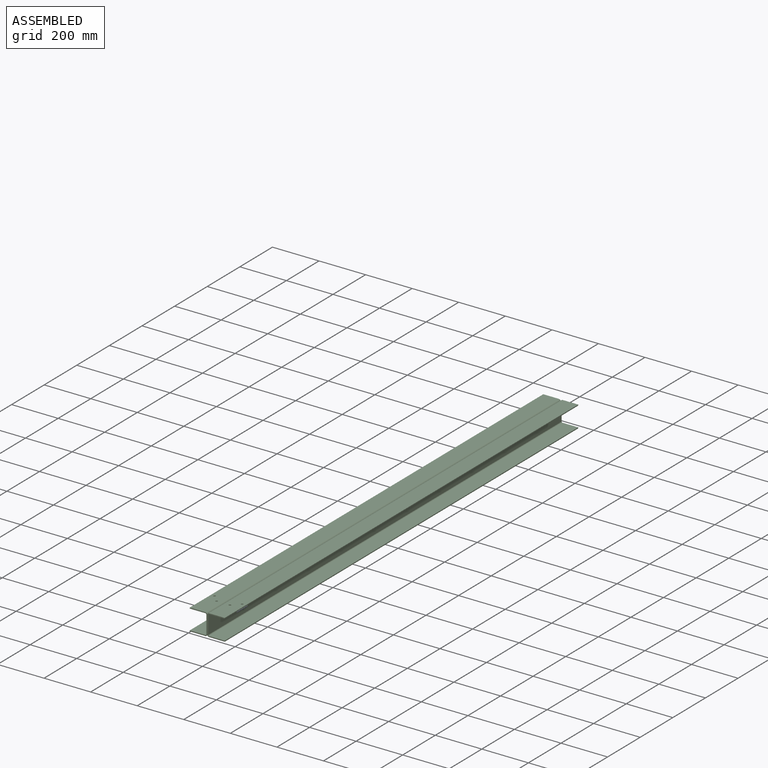
[diagram: assembled view]
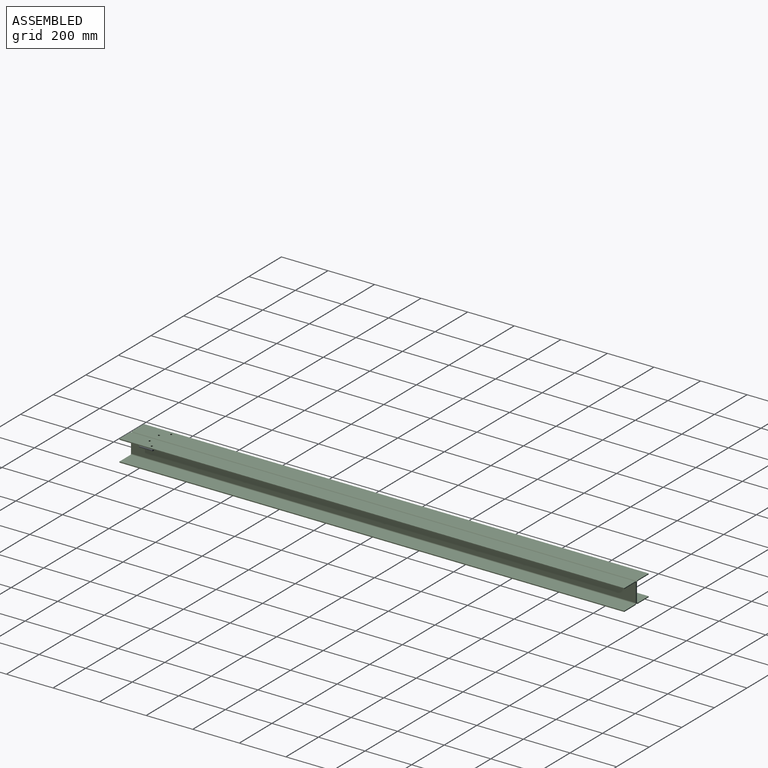
[diagram: assembled view, second angle]
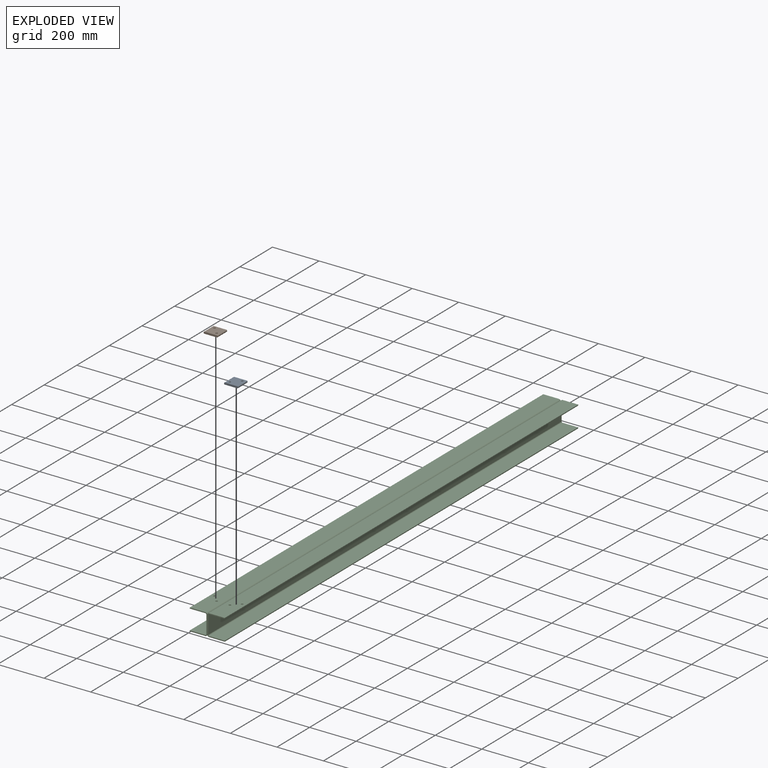
[diagram: exploded view]
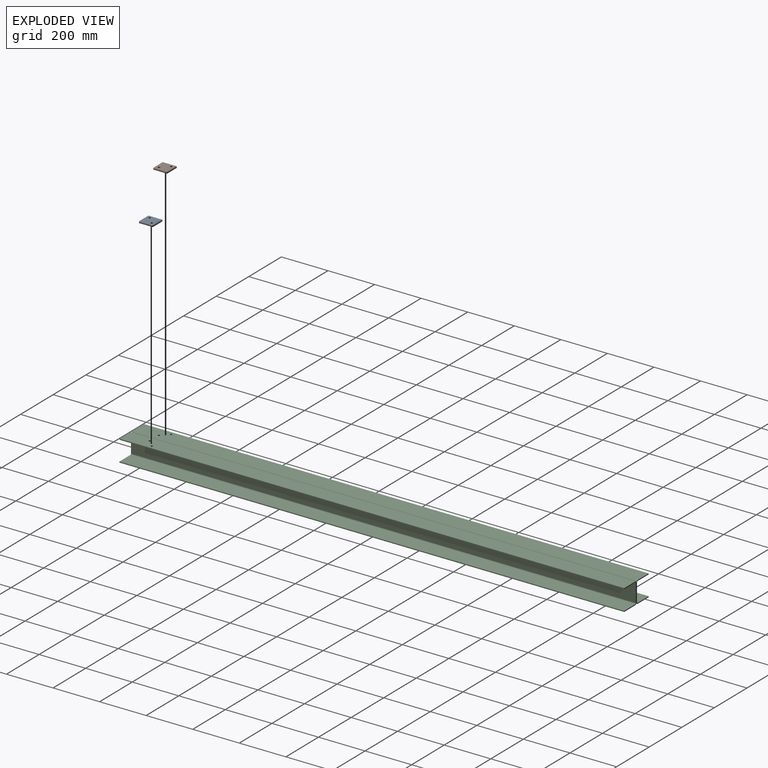
[diagram: exploded view, second angle]
ASSEMBLY  parts=3 mates=2
PART A: 20 faces, bbox 60x8x60 mm
  f0: plane 56x4mm, normal (0,0,1), area 224mm2, adj f11,f12,f16,f17
  f1: plane 58x4mm, normal (-1,0,0), area 232mm2, adj f2,f13,f17,f19
  f2: plane 60x8mm, normal (0,0,-1), area 472mm2, adj f1,f5,f6,f7,f8,f10,f13,f19
  f3: cylinder r=4.5mm len=9mm, axis (0,1,0), area 226.2mm2, adj f6,f7
  f4: cylinder r=4.5mm len=9mm, axis (0,1,0), area 226.2mm2, adj f6,f7
  f5: plane 58x4mm, normal (1,0,0), area 232mm2, adj f2,f8,f10,f11
  f6: plane 58x56mm, normal (0,-1,0), area 3120.8mm2, adj f2,f3,f4,f8,f12,f13
  f7: plane 58x56mm, normal (0,1,0), area 3120.8mm2, adj f2,f3,f4,f10,f16,f19
  f8: plane 58x2mm, normal (0.71,-0.71,0), area 164mm2, adj f2,f5,f6,f9
  f9: plane 2x2mm, normal (0.58,-0.58,0.58), area 3.5mm2, adj f8,f11,f12
  f10: plane 58x2mm, normal (0.71,0.71,0), area 164mm2, adj f2,f5,f7,f14
  f11: plane 4x2mm, normal (0.71,0,0.71), area 11.3mm2, adj f0,f5,f9,f14
  f12: plane 56x2mm, normal (0,-0.71,0.71), area 158.4mm2, adj f0,f6,f9,f15
  f13: plane 58x2mm, normal (-0.71,-0.71,0), area 164mm2, adj f1,f2,f6,f15
  f14: plane 2x2mm, normal (0.58,0.58,0.58), area 3.5mm2, adj f10,f11,f16
  f15: plane 2x2mm, normal (-0.58,-0.58,0.58), area 3.5mm2, adj f12,f13,f17
  f16: plane 56x2mm, normal (0,0.71,0.71), area 158.4mm2, adj f0,f7,f14,f18
  f17: plane 4x2mm, normal (-0.71,0,0.71), area 11.3mm2, adj f0,f1,f15,f18
  f18: plane 2x2mm, normal (-0.58,0.58,0.58), area 3.5mm2, adj f16,f17,f19
  f19: plane 58x2mm, normal (-0.71,0.71,0), area 164mm2, adj f1,f2,f7,f18
PART B: same geometry as A
PART C: 28 faces, bbox 150x2168x92.5 mm
  f0: cylinder r=8mm len=2168mm, axis (0,-1,0), area 27243.9mm2, adj f1,f21,f22,f23
  f1: cylinder r=8mm len=2168mm, axis (0,-1,0), area 27243.9mm2, adj f0,f2,f22,f23
  f2: plane 2168x67mm, normal (0,0,1), area 145128.8mm2, adj f1,f3,f22,f23,f26,f27
  f3: plane 2168x4mm, normal (-1,0,0), area 8672mm2, adj f2,f4,f22,f23
  f4: plane 2168x67mm, normal (0,0,-1), area 145128.8mm2, adj f3,f5,f22,f23,f26,f27
  f5: cylinder r=4mm len=2168mm, axis (0,-1,0), area 13621.9mm2, adj f4,f6,f22,f23
  f6: plane 2168x76.5mm, normal (-1,0,0), area 165852mm2, adj f5,f7,f22,f23
  f7: cylinder r=4mm len=2168mm, axis (0,-1,0), area 13621.9mm2, adj f6,f8,f22,f23
  f8: plane 2168x67mm, normal (0,0,1), area 145256mm2, adj f7,f9,f22,f23
  f9: plane 2168x4mm, normal (-1,0,0), area 8672mm2, adj f8,f10,f22,f23
  f10: plane 2168x67mm, normal (0,0,-1), area 145256mm2, adj f9,f11,f22,f23
  f11: cylinder r=8mm len=2168mm, axis (0,-1,0), area 27243.9mm2, adj f10,f12,f22,f23
  f12: cylinder r=8mm len=2168mm, axis (0,-1,0), area 27243.9mm2, adj f11,f13,f22,f23
  f13: plane 2168x67mm, normal (0,0,-1), area 145256mm2, adj f12,f14,f22,f23
  f14: plane 2168x4mm, normal (1,0,0), area 8672mm2, adj f13,f15,f22,f23
  f15: plane 2168x67mm, normal (0,0,1), area 145256mm2, adj f14,f16,f22,f23
  f16: cylinder r=4mm len=2168mm, axis (0,-1,0), area 13621.9mm2, adj f15,f17,f22,f23
  f17: plane 2168x76.5mm, normal (1,0,0), area 165852mm2, adj f16,f18,f22,f23
  f18: cylinder r=4mm len=2168mm, axis (0,-1,0), area 13621.9mm2, adj f17,f19,f22,f23
  f19: plane 2168x67mm, normal (0,0,-1), area 145128.8mm2, adj f18,f20,f22,f23,f24,f25
  f20: plane 2168x4mm, normal (1,0,0), area 8672mm2, adj f19,f21,f22,f23
  f21: plane 2168x67mm, normal (0,0,1), area 145128.8mm2, adj f0,f20,f22,f23,f24,f25
  f22: plane 150x92.5mm, normal (0,1,0), area 1834.8mm2, adj f0,f1,f2,f3,f4,f5,f6,f7
  f23: plane 150x92.5mm, normal (0,-1,0), area 1834.8mm2, adj f0,f1,f2,f3,f4,f5,f6,f7
  f24: cylinder r=4.5mm len=9mm, axis (0,0,1), area 113.1mm2, adj f19,f21
  f25: cylinder r=4.5mm len=9mm, axis (0,0,1), area 113.1mm2, adj f19,f21
  f26: cylinder r=4.5mm len=9mm, axis (0,0,1), area 113.1mm2, adj f2,f4
  f27: cylinder r=4.5mm len=9mm, axis (0,0,1), area 113.1mm2, adj f2,f4
PLACE A rot(axis=(0,0.71,0.71),180deg) t=(955.84,669.06,82.67)mm
PLACE B rot(axis=(-1,0,0),90deg) t=(868.05,669.06,82.67)mm
PLACE C t=(911.94,555.56,44.42)mm
MATE fastened B.f4 <-> C.f27  axis (0,0,-1) through (883.55,653.56,86.67)mm
MATE fastened A.f4 <-> C.f24  axis (0,0,1) through (940.34,653.56,86.67)mm
